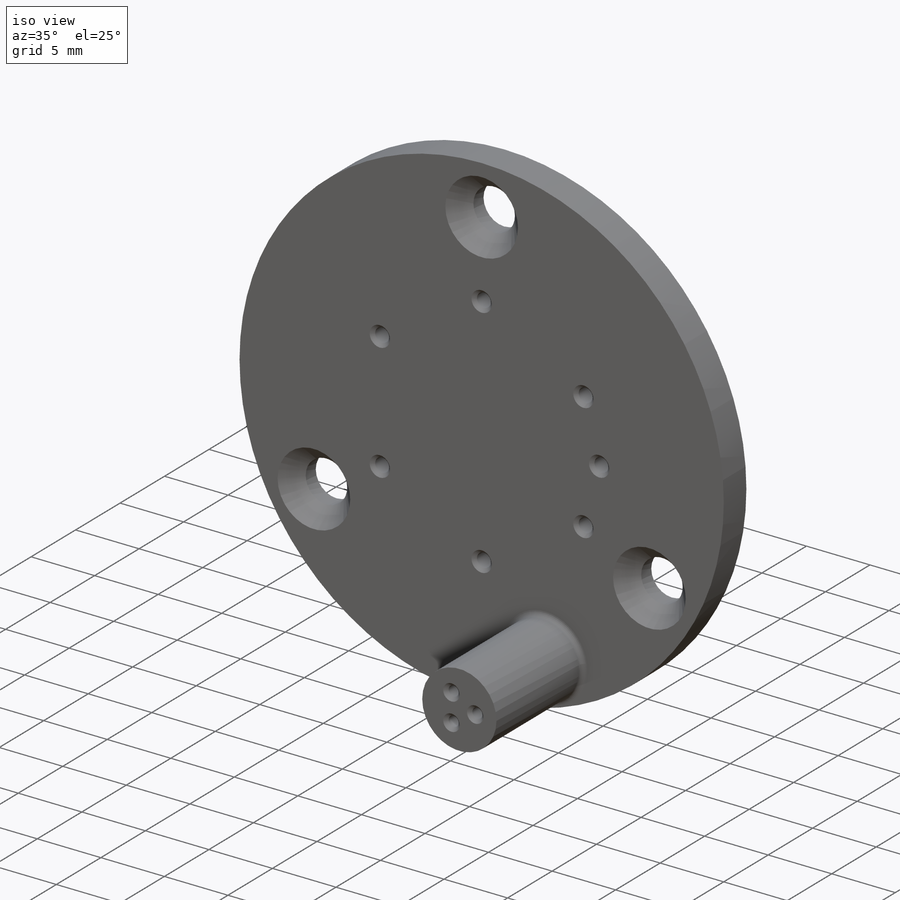
[diagram: iso view]
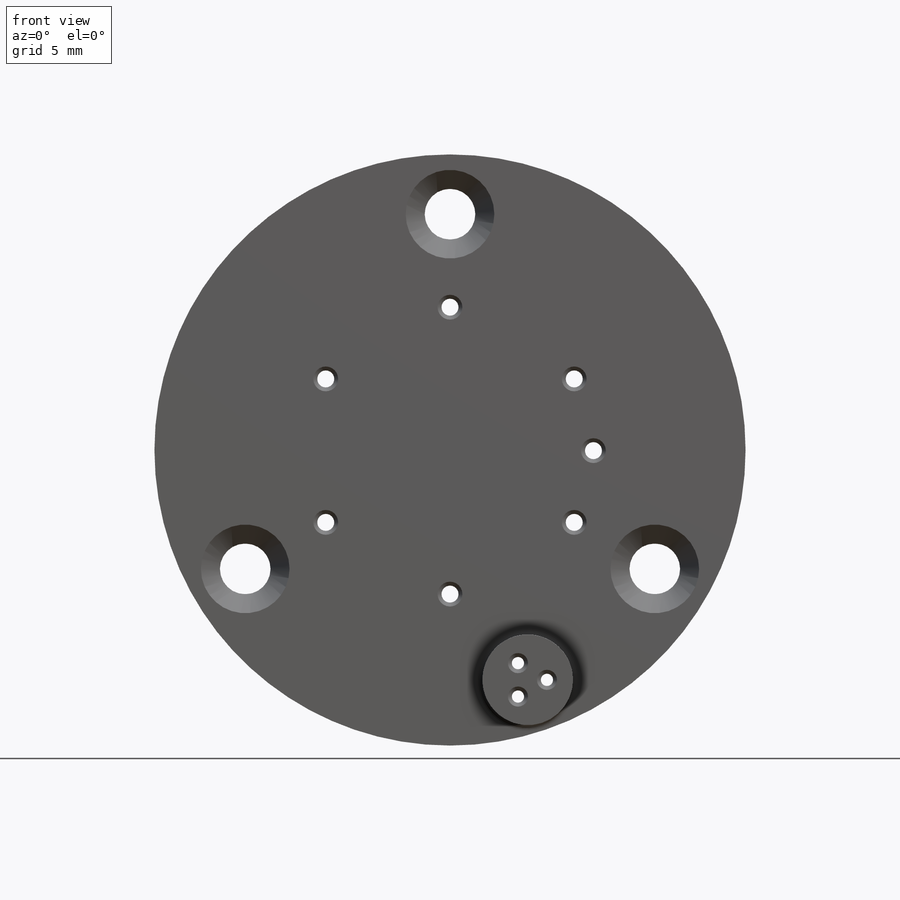
[diagram: front view]
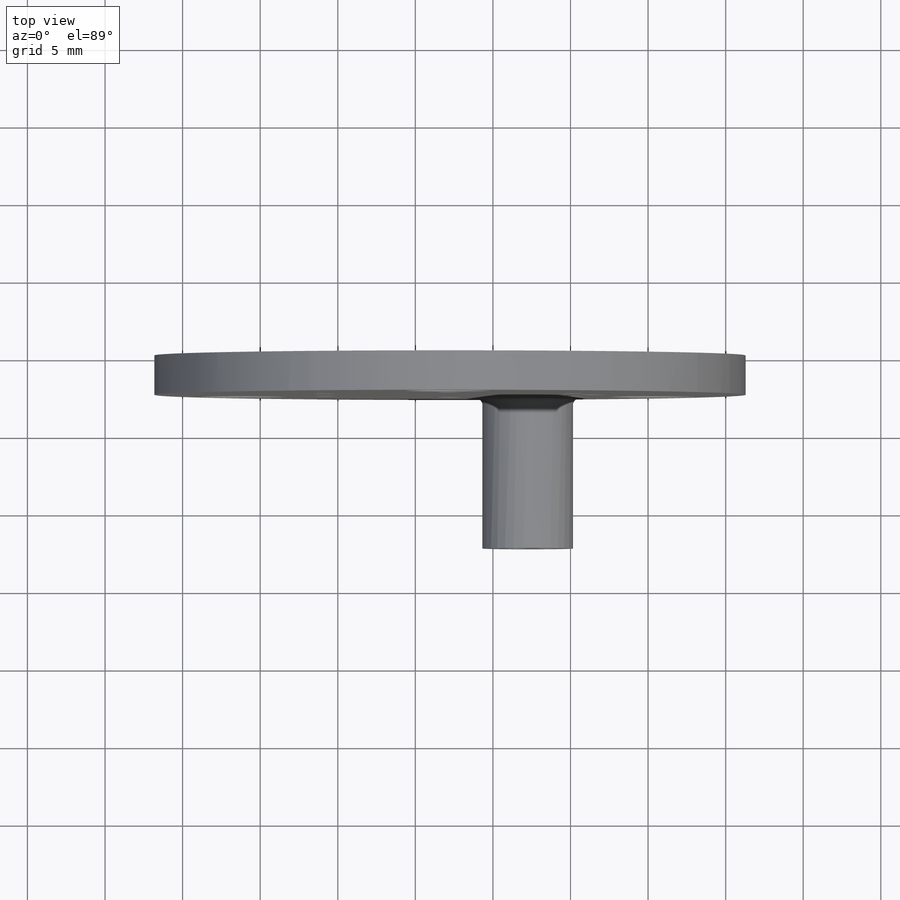
[diagram: top view]
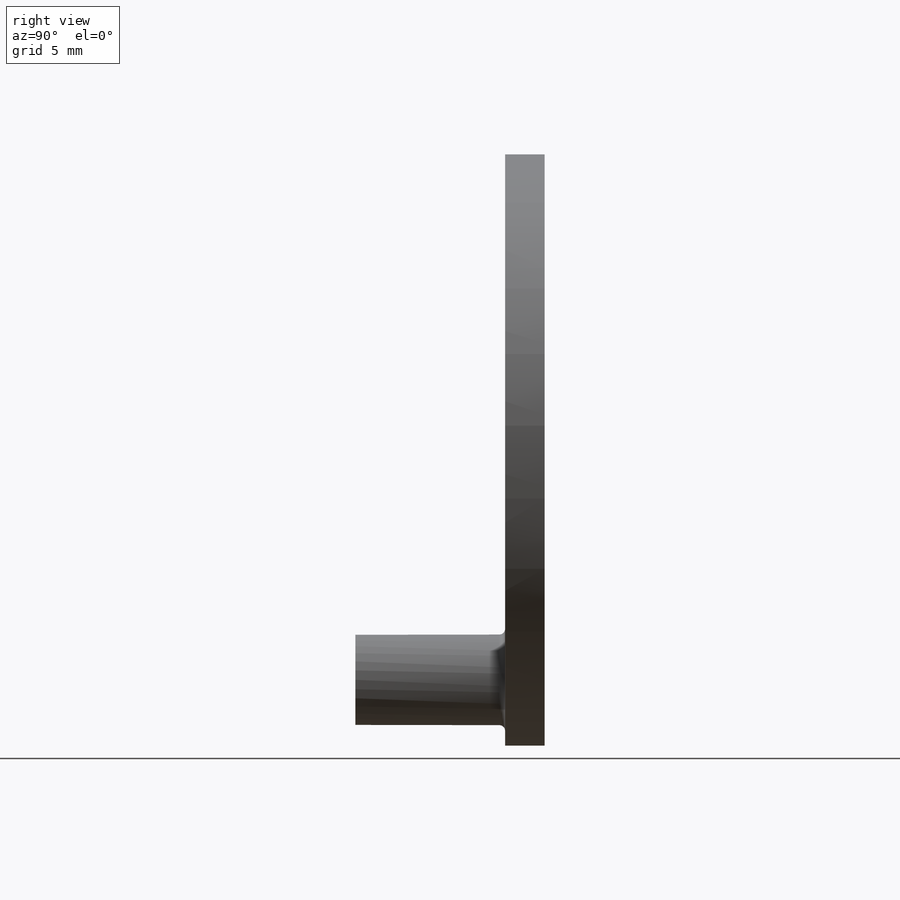
[diagram: right view]
SOLIDWORKS PART (.sldprt)
format: sldprt  version: not decoded by parser v0  size: 380,928 bytes
history: native  units: mm
features: sketch x8, hole x3, chamfer x3, extrude x2, material x1, fillet x1 + 1 further entry (+13 scaffold rows collapsed)
feature tree (32):
  scaffold x13  (default folders/planes/origin — collapsed)
  material  "PEEK"
  "Origin"  ID=-1
  sketch  "Sketch1"  dims[c1.D1=0.9906mm c1.D2=26.416mm c2.D1=38.1mm c2.D3=31.75mm c2.D4=31.75mm]
  extrude  "Boss-Extrude1"  Depth=2.54mm
  hole  "CSK for #4 Flat Head Machine Screw1"  Diameter=3.2639mm Depth=2.54mm
  sketch  "Sketch3"  dims[D1=3.81mm D2=3.81mm D3=3.81mm]
  sketch  "Sketch2"  dims[hole-wizard template sketch: 55 standard entries collapsed; hole parameters kept: c17.Thru Hole Depth=2.54mm c17.Near C'Sink Dia.=5.715mm c17.D4=~3.666174mm c17.Near C'Sink Angle=82.0deg]
  hole  "#57 (0.043) Diameter Hole1"  Diameter=1.0922mm Depth=2.54mm
  sketch  "Sketch5"
  sketch  "Sketch4"  dims[hole-wizard template sketch: 59 standard entries collapsed; hole parameters kept: c18.Thru Hole Dia.=1.0922mm c18.Thru Hole Depth=2.54mm]
  sketch  "Sketch9"  dims[D1=5.842mm]
  extrude  "Boss-Extrude2"  Depth=9.652mm
  chamfer  "Chamfer1"  Distance=0.254mm Angle=45deg
  hole  "#68 (0.031) Diameter Hole2"  Diameter=0.7874mm Depth=12.192mm
  sketch  "Sketch11"  dims[c1.D3=2.4892mm c1.D1=1.2446mm c2.D1=120.0deg c2.D2=~0.880065mm c3.D2=120.0deg]
  sketch  "Sketch10"  dims[hole-wizard template sketch: 59 standard entries collapsed; hole parameters kept: c18.Thru Hole Dia.=0.7874mm c18.Thru Hole Depth=12.192mm]
  chamfer  "Chamfer2"  Distance=0.254mm Angle=45deg
  chamfer  "Chamfer3"  Distance=0.254mm Angle=45deg
  fillet  "Fillet1"  Radius=0.381mm
decode coverage: 16 of 17 modeling features carry decoded parameters; 1 rows unclassified (native names shown)
note: ~ marks probable driven/reference dimensions
note: suppression state not decoded; provenance and decode notes live in map.json
